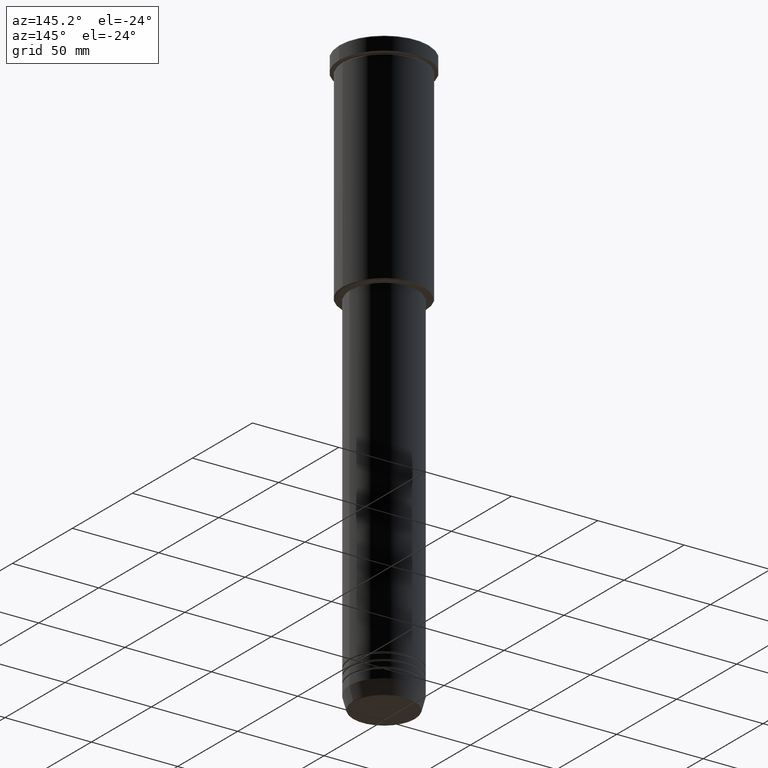
[diagram: clean part render]
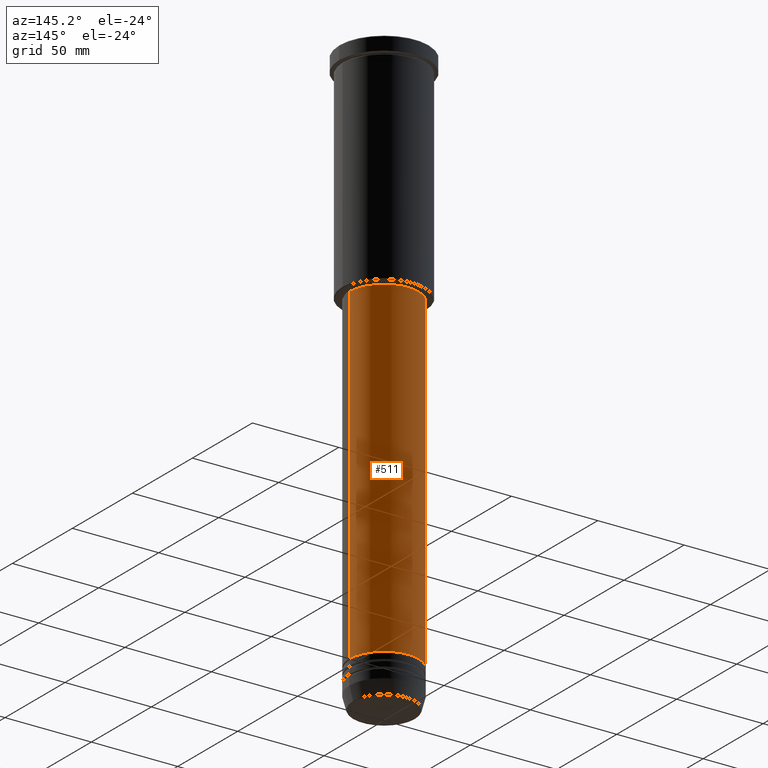
[diagram: same view with one face highlighted and labeled with its STEP entity id]
A machine part, auxiliary view. The second image highlights one B-rep face of the part: STEP entity #511.
In plain terms, the highlighted cylindrical surface (partial cylindrical patch) has radius 20 mm, axis along (-0, -0, 1).
Its self-contained STEP definition (entity closure, byte-faithful):
#31 = AXIS2_PLACEMENT_3D ( 'NONE', #422, #333, #512 ) ;
#80 = EDGE_CURVE ( 'NONE', #102, #1023, #1093, .T. ) ;
#102 = VERTEX_POINT ( 'NONE', #254 ) ;
#127 = VERTEX_POINT ( 'NONE', #536 ) ;
#165 = CARTESIAN_POINT ( 'NONE',  ( -20.00000000000000355, 2.449293598294706907E-15, 0.000000000000000000 ) ) ;
#179 = AXIS2_PLACEMENT_3D ( 'NONE', #978, #430, #1162 ) ;
#185 = CARTESIAN_POINT ( 'NONE',  ( -20.00000000000000355, 2.449293598294706907E-15, -126.9999999999999147 ) ) ;
#223 = CYLINDRICAL_SURFACE ( 'NONE', #179, 20.00000000000000355 ) ;
#233 = CIRCLE ( 'NONE', #524, 20.00000000000000355 ) ;
#246 = LINE ( 'NONE', #872, #944 ) ;
#254 = CARTESIAN_POINT ( 'NONE',  ( -20.00000000000000355, 2.449293598294706907E-15, -318.0000000000000568 ) ) ;
#265 = DIRECTION ( 'NONE',  ( -0.000000000000000000, -0.000000000000000000, 1.000000000000000000 ) ) ;
#331 = CARTESIAN_POINT ( 'NONE',  ( 20.00000000000000355, 0.000000000000000000, -318.0000000000000568 ) ) ;
#333 = DIRECTION ( 'NONE',  ( -0.000000000000000000, -0.000000000000000000, 1.000000000000000000 ) ) ;
#334 = DIRECTION ( 'NONE',  ( -0.000000000000000000, -0.000000000000000000, 1.000000000000000000 ) ) ;
#422 = CARTESIAN_POINT ( 'NONE',  ( 0.000000000000000000, 0.000000000000000000, -318.0000000000000568 ) ) ;
#430 = DIRECTION ( 'NONE',  ( -0.000000000000000000, -0.000000000000000000, 1.000000000000000000 ) ) ;
#458 = EDGE_LOOP ( 'NONE', ( #513, #748, #1140, #466 ) ) ;
#466 = ORIENTED_EDGE ( 'NONE', *, *, #746, .F. ) ;
#473 = EDGE_CURVE ( 'NONE', #1120, #102, #929, .T. ) ;
#511 = ADVANCED_FACE ( 'NONE', ( #1062 ), #223, .T. ) ;
#512 = DIRECTION ( 'NONE',  ( 1.000000000000000000, 0.000000000000000000, 0.000000000000000000 ) ) ;
#513 = ORIENTED_EDGE ( 'NONE', *, *, #473, .T. ) ;
#524 = AXIS2_PLACEMENT_3D ( 'NONE', #599, #707, #969 ) ;
#536 = CARTESIAN_POINT ( 'NONE',  ( 20.00000000000000355, 0.000000000000000000, -126.9999999999999147 ) ) ;
#599 = CARTESIAN_POINT ( 'NONE',  ( 0.000000000000000000, 0.000000000000000000, -126.9999999999999147 ) ) ;
#707 = DIRECTION ( 'NONE',  ( -0.000000000000000000, -0.000000000000000000, 1.000000000000000000 ) ) ;
#746 = EDGE_CURVE ( 'NONE', #1120, #127, #246, .T. ) ;
#748 = ORIENTED_EDGE ( 'NONE', *, *, #80, .T. ) ;
#872 = CARTESIAN_POINT ( 'NONE',  ( 20.00000000000000355, 0.000000000000000000, 0.000000000000000000 ) ) ;
#929 = CIRCLE ( 'NONE', #31, 20.00000000000000355 ) ;
#944 = VECTOR ( 'NONE', #334, 1000.000000000000000 ) ;
#969 = DIRECTION ( 'NONE',  ( 1.000000000000000000, 0.000000000000000000, 0.000000000000000000 ) ) ;
#978 = CARTESIAN_POINT ( 'NONE',  ( 0.000000000000000000, 0.000000000000000000, 0.000000000000000000 ) ) ;
#1023 = VERTEX_POINT ( 'NONE', #185 ) ;
#1062 = FACE_OUTER_BOUND ( 'NONE', #458, .T. ) ;
#1093 = LINE ( 'NONE', #165, #1171 ) ;
#1120 = VERTEX_POINT ( 'NONE', #331 ) ;
#1140 = ORIENTED_EDGE ( 'NONE', *, *, #1169, .F. ) ;
#1162 = DIRECTION ( 'NONE',  ( 1.000000000000000000, 0.000000000000000000, 0.000000000000000000 ) ) ;
#1169 = EDGE_CURVE ( 'NONE', #127, #1023, #233, .T. ) ;
#1171 = VECTOR ( 'NONE', #265, 1000.000000000000000 ) ;